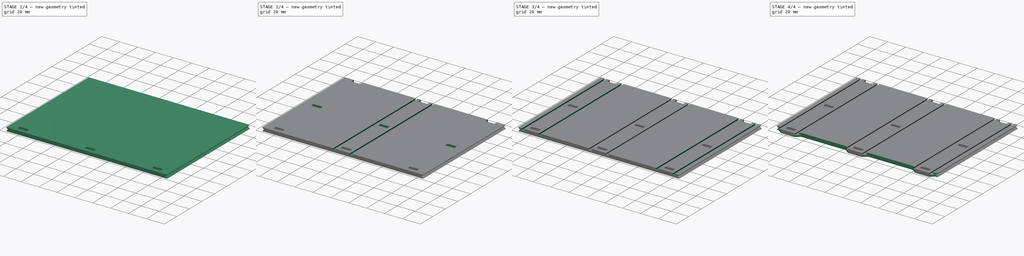
[diagram: build sequence overview — one tinted view per stage of 4, left to right]
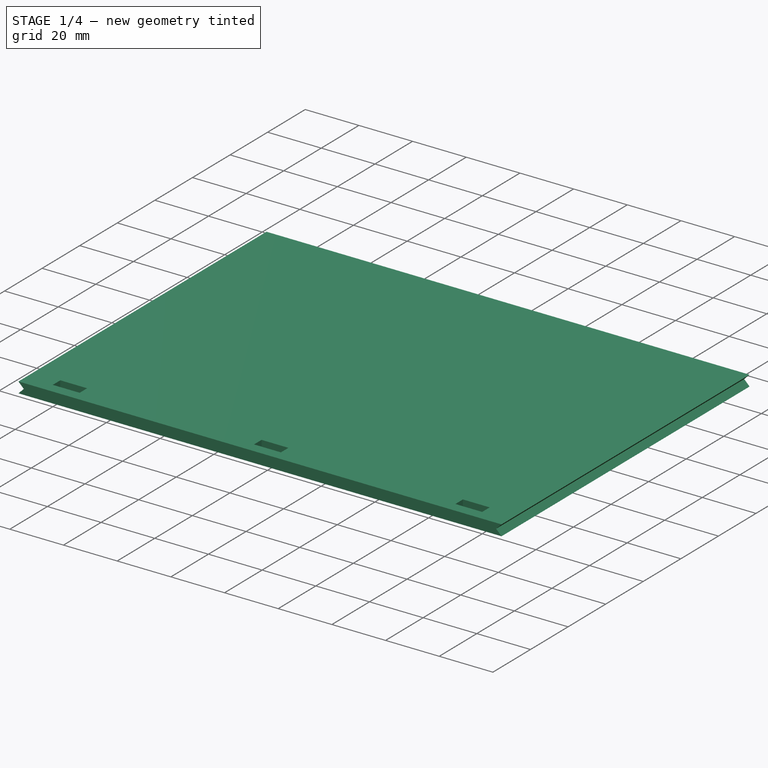
[diagram: stage 1 of 4 — iso view after this stage's code; geometry added in this stage tinted green]
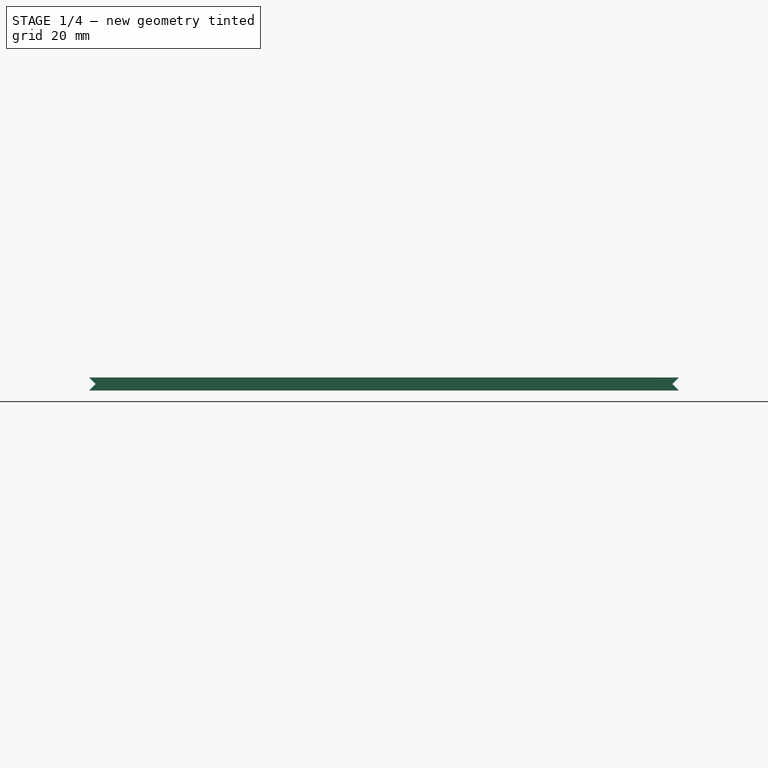
[diagram: stage 1 of 4 — front view after this stage's code; geometry added in this stage tinted green]
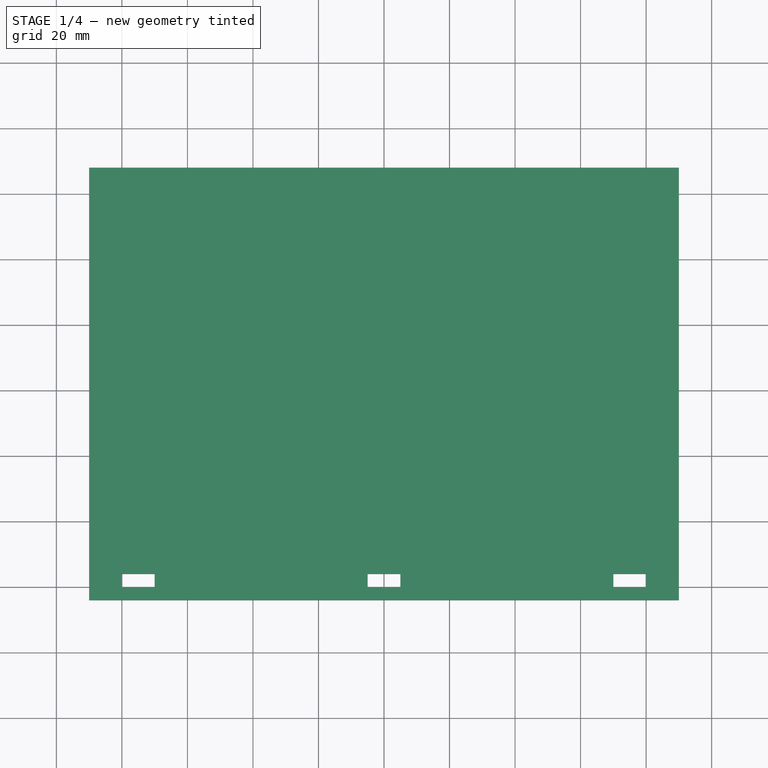
[diagram: stage 1 of 4 — top view after this stage's code; geometry added in this stage tinted green]
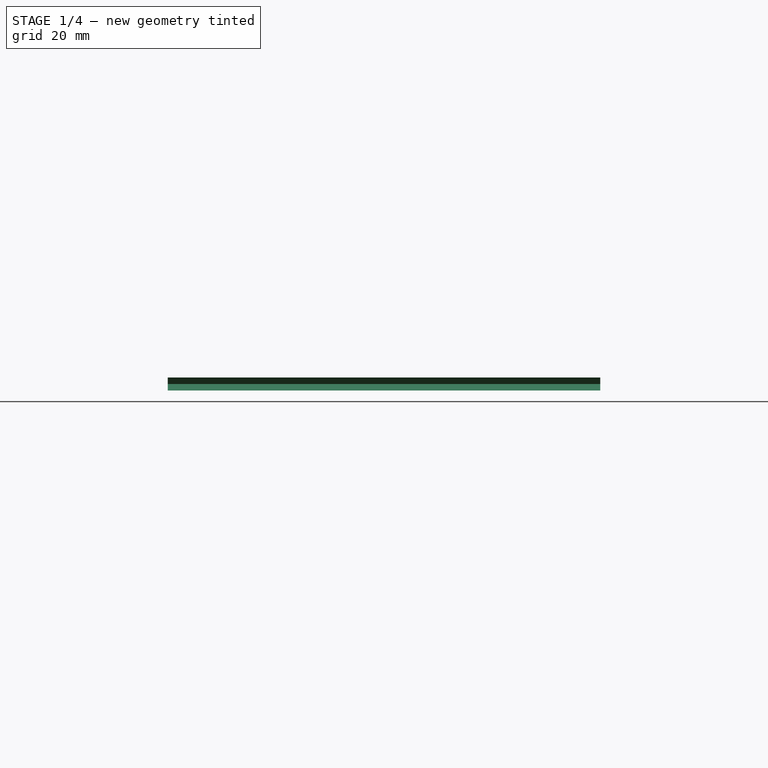
[diagram: stage 1 of 4 — right view after this stage's code; geometry added in this stage tinted green]
FCSTD DOCUMENT  (FreeCAD 0.18R16131 (Git))
Label: SolidWall
License: All rights reserved
LicenseURL: http://en.wikipedia.org/wiki/All_rights_reserved
objects: Sketcher::SketchObject×10, PartDesign::Pocket×7, PartDesign::Plane×6, PartDesign::AdditiveLoft×1, PartDesign::Fillet×1, PartDesign::Body×1, App::Part×1, Part::FeaturePython×1
note: 35 computed .brp shape members not serialized (recipe doc carries the construction recipe); baked Part::Feature solids carry a one-line shape summary decoded from their .brp

FEATURE [Sketcher::SketchObject] Sketch  label="HolesSketch1"
  MapMode = 5
  Support = -> [XY_Plane001]
  sketch-geometry (12):
    g0: LineSegment StartX=-80 StartY=4 StartZ=0 EndX=-70 EndY=4 EndZ=0
    g1: LineSegment StartX=-70 StartY=4 StartZ=0 EndX=-70 EndY=0 EndZ=0
    g2: LineSegment StartX=-70 StartY=0 StartZ=0 EndX=-80 EndY=1e-16 EndZ=0
    g3: LineSegment StartX=-80 StartY=1e-16 StartZ=0 EndX=-80 EndY=4 EndZ=0
    g4: LineSegment StartX=-5 StartY=4 StartZ=0 EndX=5 EndY=4 EndZ=0
    g5: LineSegment StartX=5 StartY=4 StartZ=0 EndX=5 EndY=0 EndZ=0
    g6: LineSegment StartX=5 StartY=0 StartZ=0 EndX=-5 EndY=0 EndZ=0
    g7: LineSegment StartX=-5 StartY=0 StartZ=0 EndX=-5 EndY=4 EndZ=0
    g8: LineSegment StartX=70 StartY=4 StartZ=0 EndX=80 EndY=4 EndZ=0
    g9: LineSegment StartX=80 StartY=4 StartZ=0 EndX=80 EndY=0 EndZ=0
    g10: LineSegment StartX=80 StartY=0 StartZ=0 EndX=70 EndY=0 EndZ=0
    g11: LineSegment StartX=70 StartY=0 StartZ=0 EndX=70 EndY=4 EndZ=0
  constraints (33):
    c: Coincident(g0,g1)
    c: Coincident(g1,g2)
    c: Coincident(g2,g3)
    c: Coincident(g3,g0)
    c: Horizontal(g0)
    c: Vertical(g1)
    c: Vertical(g3)
    c: PointOnObject(g1,g-1)
    c: Coincident(g4,g5)
    c: Coincident(g5,g6)
    c: Coincident(g6,g7)
    c: Coincident(g7,g4)
    c: Vertical(g5)
    c: Vertical(g7)
    c: PointOnObject(g5,g-1)
    c: Coincident(g8,g9)
    c: Coincident(g9,g10)
    c: Coincident(g10,g11)
    c: Coincident(g11,g8)
    c: Vertical(g9)
    c: Symmetric(g6,g5,g-2)
    c: Symmetric(g1,g10,g-2)
    c: Symmetric(g9,g2,g-2)
    c: Equal(g3,g1)
    c: Equal(g1,g7)
    c: Equal(g7,g5)
    c: Equal(g5,g11)
    c: Equal(g11,g9)
    c: Equal(g0,g4)
    c: Equal(g4,g8)
    c: Distance(g4) = 10
    c: Distance(g7) = 4
    c: Distance(g0,g8) = 160
FEATURE [PartDesign::Plane] DatumPlane  label="HolesPlane2"
  AttachmentOffset = pos=(0,60,0) rot=(0,0,1;0rad)
  Length = 211.521
  MapMode = 5
  Placement = pos=(0,60,0) rot=(0,0,1;0rad)
  ResizeMode = 0
  Support = -> [XY_Plane001]
  Width = 169.521
FEATURE [PartDesign::Plane] DatumPlane001  label="HolesPlane3"
  AttachmentOffset = pos=(0,124,0) rot=(0,0,1;0rad)
  Length = 211.521
  MapMode = 5
  Placement = pos=(0,124,0) rot=(0,0,1;0rad)
  ResizeMode = 0
  Support = -> [XY_Plane001]
  Width = 169.521
FEATURE [Sketcher::SketchObject] Sketch001  label="HolesSketch2"
  MapMode = 5
  Placement = pos=(0,60,0) rot=(0,0,1;0rad)
  Support = -> [DatumPlane]
  sketch-geometry (12):
    g0: LineSegment StartX=-80 StartY=4 StartZ=0 EndX=-70 EndY=4 EndZ=0
    g1: LineSegment StartX=-70 StartY=4 StartZ=0 EndX=-70 EndY=0 EndZ=0
    g2: LineSegment StartX=-70 StartY=0 StartZ=0 EndX=-80 EndY=1e-16 EndZ=0
    g3: LineSegment StartX=-80 StartY=1e-16 StartZ=0 EndX=-80 EndY=4 EndZ=0
    g4: LineSegment StartX=-5 StartY=4 StartZ=0 EndX=5 EndY=4 EndZ=0
    g5: LineSegment StartX=5 StartY=4 StartZ=0 EndX=5 EndY=0 EndZ=0
    g6: LineSegment StartX=5 StartY=0 StartZ=0 EndX=-5 EndY=0 EndZ=0
    g7: LineSegment StartX=-5 StartY=0 StartZ=0 EndX=-5 EndY=4 EndZ=0
    g8: LineSegment StartX=70 StartY=4 StartZ=0 EndX=80 EndY=4 EndZ=0
    g9: LineSegment StartX=80 StartY=4 StartZ=0 EndX=80 EndY=0 EndZ=0
    g10: LineSegment StartX=80 StartY=0 StartZ=0 EndX=70 EndY=0 EndZ=0
    g11: LineSegment StartX=70 StartY=0 StartZ=0 EndX=70 EndY=4 EndZ=0
  constraints (33):
    c: Coincident(g0,g1)
    c: Coincident(g1,g2)
    c: Coincident(g2,g3)
    c: Coincident(g3,g0)
    c: Horizontal(g0)
    c: Vertical(g1)
    c: Vertical(g3)
    c: PointOnObject(g1,g-1)
    c: Coincident(g4,g5)
    c: Coincident(g5,g6)
    c: Coincident(g6,g7)
    c: Coincident(g7,g4)
    c: Vertical(g5)
    c: Vertical(g7)
    c: PointOnObject(g5,g-1)
    c: Coincident(g8,g9)
    c: Coincident(g9,g10)
    c: Coincident(g10,g11)
    c: Coincident(g11,g8)
    c: Vertical(g9)
    c: Symmetric(g6,g5,g-2)
    c: Symmetric(g1,g10,g-2)
    c: Symmetric(g9,g2,g-2)
    c: Equal(g3,g1)
    c: Equal(g1,g7)
    c: Equal(g7,g5)
    c: Equal(g5,g11)
    c: Equal(g11,g9)
    c: Equal(g0,g4)
    c: Equal(g4,g8)
    c: Distance(g4) = 10
    c: Distance(g7) = 4
    c: Distance(g0,g8) = 160
FEATURE [Sketcher::SketchObject] Sketch002  label="HolesSketch3"
  MapMode = 5
  Placement = pos=(0,124,0) rot=(0,0,1;0rad)
  Support = -> [DatumPlane001]
  sketch-geometry (12):
    g0: LineSegment StartX=-80 StartY=4 StartZ=0 EndX=-70 EndY=4 EndZ=0
    g1: LineSegment StartX=-70 StartY=4 StartZ=0 EndX=-70 EndY=0 EndZ=0
    g2: LineSegment StartX=-70 StartY=0 StartZ=0 EndX=-80 EndY=1e-16 EndZ=0
    g3: LineSegment StartX=-80 StartY=1e-16 StartZ=0 EndX=-80 EndY=4 EndZ=0
    g4: LineSegment StartX=-5 StartY=4 StartZ=0 EndX=5 EndY=4 EndZ=0
    g5: LineSegment StartX=5 StartY=4 StartZ=0 EndX=5 EndY=0 EndZ=0
    g6: LineSegment StartX=5 StartY=0 StartZ=0 EndX=-5 EndY=0 EndZ=0
    g7: LineSegment StartX=-5 StartY=0 StartZ=0 EndX=-5 EndY=4 EndZ=0
    g8: LineSegment StartX=70 StartY=4 StartZ=0 EndX=80 EndY=4 EndZ=0
    g9: LineSegment StartX=80 StartY=4 StartZ=0 EndX=80 EndY=0 EndZ=0
    g10: LineSegment StartX=80 StartY=0 StartZ=0 EndX=70 EndY=0 EndZ=0
    g11: LineSegment StartX=70 StartY=0 StartZ=0 EndX=70 EndY=4 EndZ=0
  constraints (33):
    c: Coincident(g0,g1)
    c: Coincident(g1,g2)
    c: Coincident(g2,g3)
    c: Coincident(g3,g0)
    c: Horizontal(g0)
    c: Vertical(g1)
    c: Vertical(g3)
    c: PointOnObject(g1,g-1)
    c: Coincident(g4,g5)
    c: Coincident(g5,g6)
    c: Coincident(g6,g7)
    c: Coincident(g7,g4)
    c: Vertical(g5)
    c: Vertical(g7)
    c: PointOnObject(g5,g-1)
    c: Coincident(g8,g9)
    c: Coincident(g9,g10)
    c: Coincident(g10,g11)
    c: Coincident(g11,g8)
    c: Vertical(g9)
    c: Symmetric(g6,g5,g-2)
    c: Symmetric(g1,g10,g-2)
    c: Symmetric(g9,g2,g-2)
    c: Equal(g3,g1)
    c: Equal(g1,g7)
    c: Equal(g7,g5)
    c: Equal(g5,g11)
    c: Equal(g11,g9)
    c: Equal(g0,g4)
    c: Equal(g4,g8)
    c: Distance(g4) = 10
    c: Distance(g7) = 4
    c: Distance(g0,g8) = 160
FEATURE [Sketcher::SketchObject] Sketch003  label="WallSketchMid"
  MapMode = 5
  Support = -> [XY_Plane001]
  sketch-geometry (4):
    g0: LineSegment StartX=-88 StartY=128 StartZ=0 EndX=88 EndY=128 EndZ=0
    g1: LineSegment StartX=88 StartY=128 StartZ=0 EndX=88 EndY=-4 EndZ=0
    g2: LineSegment StartX=88 StartY=-4 StartZ=0 EndX=-88 EndY=-4 EndZ=0
    g3: LineSegment StartX=-88 StartY=-4 StartZ=0 EndX=-88 EndY=128 EndZ=0
  constraints (11):
    c: Coincident(g0,g1)
    c: Coincident(g1,g2)
    c: Coincident(g2,g3)
    c: Coincident(g3,g0)
    c: Horizontal(g2)
    c: Vertical(g1)
    c: Vertical(g3)
    c: Symmetric(g0,g0,g-2)
    c: Distance(g0) = 176
    c: DistanceY(g-1,g0) = 128
    c: DistanceY(g-1,g2) = -4
FEATURE [PartDesign::Plane] DatumPlane002  label="WallSketchPlaneTop"
  AttachmentOffset = pos=(0,0,2) rot=(0,0,1;0rad)
  Length = 211.521
  MapMode = 5
  Placement = pos=(0,0,2) rot=(0,0,1;0rad)
  ResizeMode = 0
  Support = -> [XY_Plane001]
  Width = 169.521
FEATURE [Sketcher::SketchObject] Sketch004  label="WallSketchTop"
  MapMode = 5
  Placement = pos=(0,0,2) rot=(0,0,1;0rad)
  Support = -> [DatumPlane002]
  sketch-geometry (4):
    g0: LineSegment StartX=-90 StartY=128 StartZ=0 EndX=90 EndY=128 EndZ=0
    g1: LineSegment StartX=90 StartY=128 StartZ=0 EndX=90 EndY=-4 EndZ=0
    g2: LineSegment StartX=90 StartY=-4 StartZ=0 EndX=-90 EndY=-4 EndZ=0
    g3: LineSegment StartX=-90 StartY=-4 StartZ=0 EndX=-90 EndY=128 EndZ=0
  constraints (11):
    c: Coincident(g0,g1)
    c: Coincident(g1,g2)
    c: Coincident(g2,g3)
    c: Coincident(g3,g0)
    c: Horizontal(g2)
    c: Vertical(g1)
    c: Vertical(g3)
    c: Symmetric(g0,g0,g-2)
    c: Distance(g0) = 180
    c: DistanceY(g-1,g0) = 128
    c: DistanceY(g-1,g2) = -4
FEATURE [PartDesign::Plane] DatumPlane003  label="WallSketchPlaneBottom"
  AttachmentOffset = pos=(0,0,-2) rot=(0,0,1;0rad)
  Length = 211.521
  MapMode = 5
  Placement = pos=(0,0,-2) rot=(0,0,1;0rad)
  ResizeMode = 0
  Support = -> [XY_Plane001]
  Width = 169.521
FEATURE [Sketcher::SketchObject] Sketch005  label="WallSketchBottom"
  MapMode = 5
  Placement = pos=(0,0,-2) rot=(0,0,1;0rad)
  Support = -> [DatumPlane003]
  sketch-geometry (4):
    g0: LineSegment StartX=-90 StartY=128 StartZ=0 EndX=90 EndY=128 EndZ=0
    g1: LineSegment StartX=90 StartY=128 StartZ=0 EndX=90 EndY=-4 EndZ=0
    g2: LineSegment StartX=90 StartY=-4 StartZ=0 EndX=-90 EndY=-4 EndZ=0
    g3: LineSegment StartX=-90 StartY=-4 StartZ=0 EndX=-90 EndY=128 EndZ=0
  constraints (11):
    c: Coincident(g0,g1)
    c: Coincident(g1,g2)
    c: Coincident(g2,g3)
    c: Coincident(g3,g0)
    c: Horizontal(g2)
    c: Vertical(g1)
    c: Vertical(g3)
    c: Symmetric(g0,g0,g-2)
    c: Distance(g0) = 180
    c: DistanceY(g-1,g0) = 128
    c: DistanceY(g-1,g2) = -4
FEATURE [PartDesign::AdditiveLoft] AdditiveLoft
  Closed = false
  Placement = pos=(0,0,-2) rot=(0,0,1;0rad)
  Profile = -> Sketch005
  Ruled = true
  Sections = -> [Sketch003,Sketch004]
FEATURE [PartDesign::Pocket] Pocket
  BaseFeature = -> AdditiveLoft
  Length = 5
  Length2 = 100
  Midplane = true
  Placement = pos=(0,0,-2) rot=(0,0,1;0rad)
  Profile = -> Sketch
  Type = 1
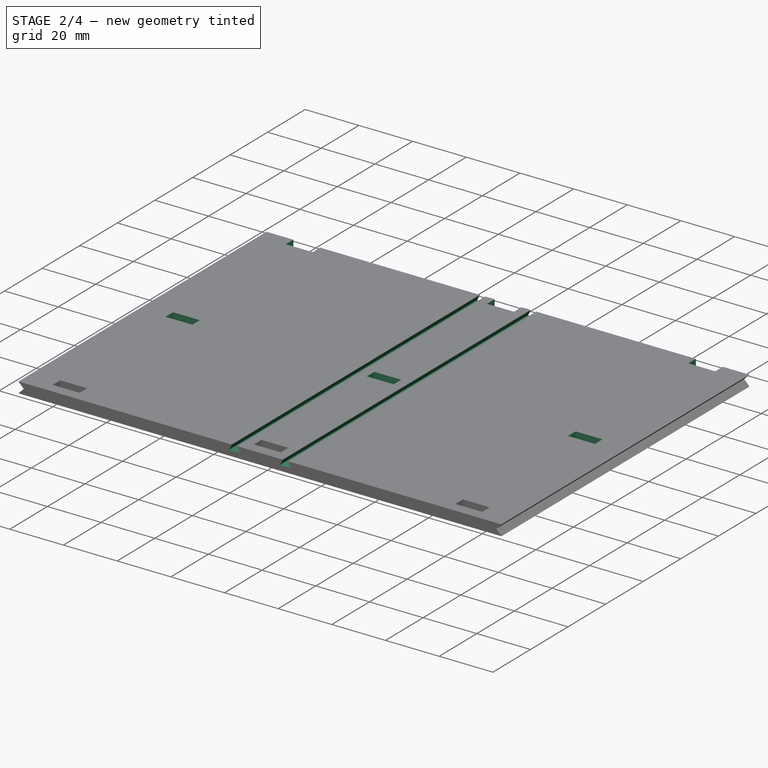
[diagram: stage 2 of 4 — iso view after this stage's code; geometry added in this stage tinted green]
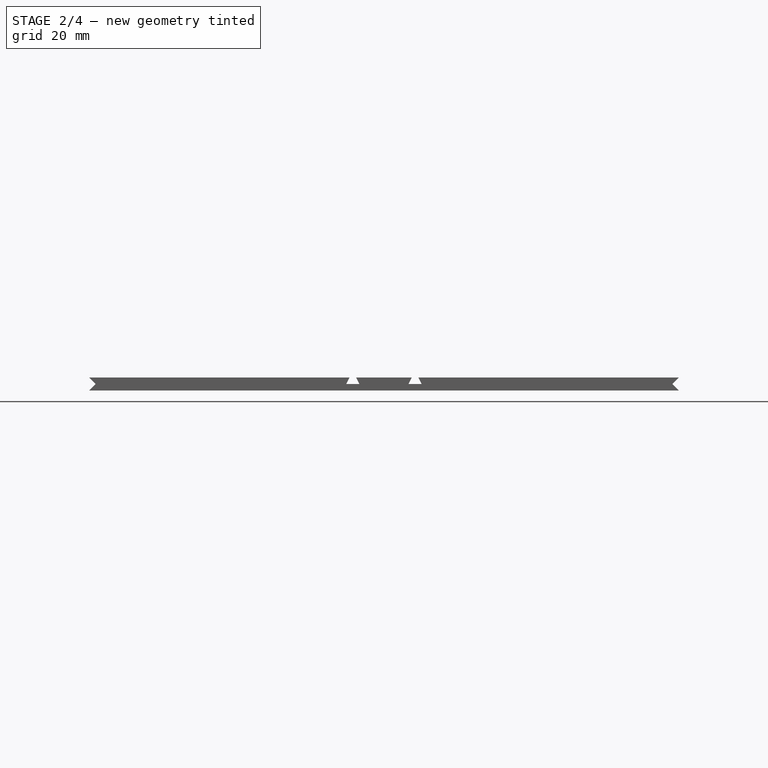
[diagram: stage 2 of 4 — front view after this stage's code; geometry added in this stage tinted green]
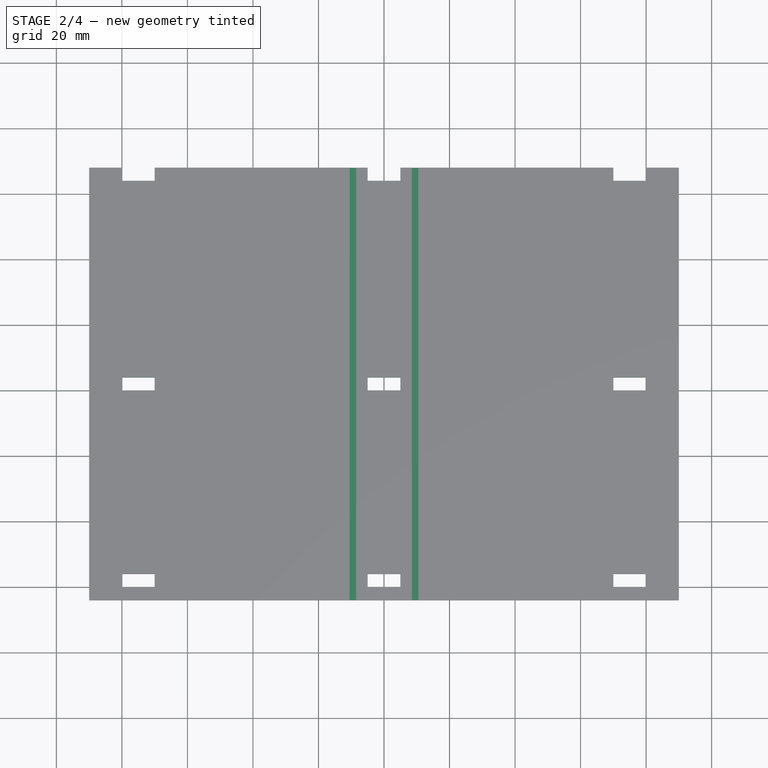
[diagram: stage 2 of 4 — top view after this stage's code; geometry added in this stage tinted green]
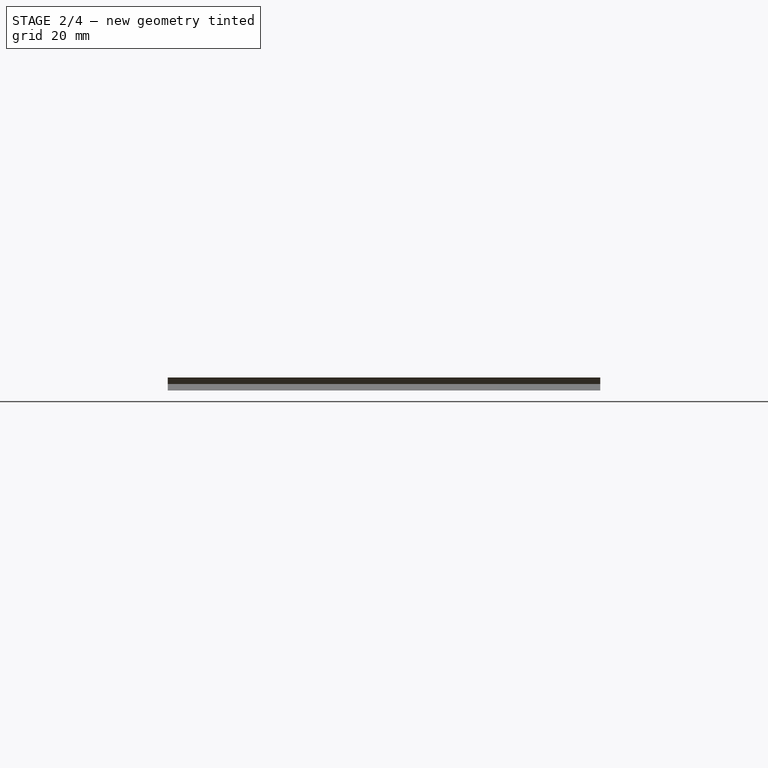
[diagram: stage 2 of 4 — right view after this stage's code; geometry added in this stage tinted green]
FEATURE [PartDesign::Pocket] Pocket001
  BaseFeature = -> Pocket
  Length = 5
  Length2 = 100
  Midplane = true
  Placement = pos=(0,0,-2) rot=(0,0,1;0rad)
  Profile = -> Sketch001
  Type = 1
FEATURE [PartDesign::Pocket] Pocket002
  BaseFeature = -> Pocket001
  Length = 5
  Length2 = 100
  Midplane = true
  Placement = pos=(0,0,-2) rot=(0,0,1;0rad)
  Profile = -> Sketch002
  Type = 1
FEATURE [Sketcher::SketchObject] Sketch006  label="RailsSketch1"
  MapMode = 5
  Placement = pos=(0,0,0) rot=(1,0,0;1.5708rad)
  Support = -> [XZ_Plane001]
  sketch-geometry (8):
    g0: LineSegment StartX=-11.5 StartY=0 StartZ=0 EndX=-7.5 EndY=0 EndZ=0
    g1: LineSegment StartX=-11.5 StartY=0 StartZ=0 EndX=-10.5 EndY=2 EndZ=0
    g2: LineSegment StartX=-10.5 StartY=2 StartZ=0 EndX=-8.5 EndY=2 EndZ=0
    g3: LineSegment StartX=-8.5 StartY=2 StartZ=0 EndX=-7.5 EndY=0 EndZ=0
    g4: LineSegment StartX=7.5 StartY=0 StartZ=0 EndX=11.5 EndY=-1.62e-14 EndZ=0
    g5: LineSegment StartX=11.5 StartY=-1.62e-14 StartZ=0 EndX=10.5 EndY=2 EndZ=0
    g6: LineSegment StartX=10.5 StartY=2 StartZ=0 EndX=8.5 EndY=2 EndZ=0
    g7: LineSegment StartX=8.5 StartY=2 StartZ=0 EndX=7.5 EndY=0 EndZ=0
  constraints (22):
    c: Coincident(g1,g0)
    c: Coincident(g2,g1)
    c: Coincident(g3,g2)
    c: Coincident(g3,g0)
    c: Coincident(g5,g4)
    c: Coincident(g6,g5)
    c: Coincident(g7,g6)
    c: Coincident(g7,g4)
    c: Symmetric(g0,g4,g-2)
    c: Symmetric(g0,g4,g-2)
    c: Symmetric(g1,g5,g-2)
    c: Symmetric(g2,g6,g-2)
    c: PointOnObject(g0,g-1)
    c: PointOnObject(g0,g-1)
    c: Equal(g1,g3)
    c: Equal(g3,g7)
    c: Equal(g7,g5)
    c: Horizontal(g2)
    c: Distance(g0) = 4
    c: Distance(g0,g4) = 15
    c: DistanceY(g0,g1) = 2
    c: Distance(g2) = 2
FEATURE [PartDesign::Plane] DatumPlane004  label="RailsPlane2"
  AttachmentOffset = pos=(-75,0,0) rot=(0,0,1;0rad)
  Length = 192
  MapMode = 5
  Placement = pos=(-75,0,0) rot=(1,0,0;1.5708rad)
  ResizeMode = 0
  Support = -> [XZ_Plane001]
  Width = 32
FEATURE [Sketcher::SketchObject] Sketch007  label="RailsSketch2"
  MapMode = 5
  Placement = pos=(-75,0,0) rot=(1,0,0;1.5708rad)
  Support = -> [DatumPlane004]
  sketch-geometry (8):
    g0: LineSegment StartX=-11.5 StartY=0 StartZ=0 EndX=-7.5 EndY=0 EndZ=0
    g1: LineSegment StartX=-11.5 StartY=0 StartZ=0 EndX=-10.5 EndY=2 EndZ=0
    g2: LineSegment StartX=-10.5 StartY=2 StartZ=0 EndX=-8.5 EndY=2 EndZ=0
    g3: LineSegment StartX=-8.5 StartY=2 StartZ=0 EndX=-7.5 EndY=0 EndZ=0
    g4: LineSegment StartX=7.5 StartY=0 StartZ=0 EndX=11.5 EndY=-1.62e-14 EndZ=0
    g5: LineSegment StartX=11.5 StartY=-1.62e-14 StartZ=0 EndX=10.5 EndY=2 EndZ=0
    g6: LineSegment StartX=10.5 StartY=2 StartZ=0 EndX=8.5 EndY=2 EndZ=0
    g7: LineSegment StartX=8.5 StartY=2 StartZ=0 EndX=7.5 EndY=0 EndZ=0
  constraints (22):
    c: Coincident(g1,g0)
    c: Coincident(g2,g1)
    c: Coincident(g3,g2)
    c: Coincident(g3,g0)
    c: Coincident(g5,g4)
    c: Coincident(g6,g5)
    c: Coincident(g7,g6)
    c: Coincident(g7,g4)
    c: Symmetric(g0,g4,g-2)
    c: Symmetric(g0,g4,g-2)
    c: Symmetric(g1,g5,g-2)
    c: Symmetric(g2,g6,g-2)
    c: PointOnObject(g0,g-1)
    c: PointOnObject(g0,g-1)
    c: Equal(g1,g3)
    c: Equal(g3,g7)
    c: Equal(g7,g5)
    c: Horizontal(g2)
    c: Distance(g0) = 4
    c: Distance(g0,g4) = 15
    c: DistanceY(g0,g1) = 2
    c: Distance(g2) = 2
FEATURE [PartDesign::Plane] DatumPlane005  label="RailsPlane3"
  AttachmentOffset = pos=(75,0,0) rot=(0,0,1;0rad)
  Length = 192
  MapMode = 5
  Placement = pos=(75,0,0) rot=(1,0,0;1.5708rad)
  ResizeMode = 0
  Support = -> [XZ_Plane001]
  Width = 32
FEATURE [Sketcher::SketchObject] Sketch008  label="RailsSketch3"
  MapMode = 5
  Placement = pos=(75,0,0) rot=(1,0,0;1.5708rad)
  Support = -> [DatumPlane005]
  sketch-geometry (8):
    g0: LineSegment StartX=-11.5 StartY=0 StartZ=0 EndX=-7.5 EndY=0 EndZ=0
    g1: LineSegment StartX=-11.5 StartY=0 StartZ=0 EndX=-10.5 EndY=2 EndZ=0
    g2: LineSegment StartX=-10.5 StartY=2 StartZ=0 EndX=-8.5 EndY=2 EndZ=0
    g3: LineSegment StartX=-8.5 StartY=2 StartZ=0 EndX=-7.5 EndY=0 EndZ=0
    g4: LineSegment StartX=7.5 StartY=0 StartZ=0 EndX=11.5 EndY=-1.62e-14 EndZ=0
    g5: LineSegment StartX=11.5 StartY=-1.62e-14 StartZ=0 EndX=10.5 EndY=2 EndZ=0
    g6: LineSegment StartX=10.5 StartY=2 StartZ=0 EndX=8.5 EndY=2 EndZ=0
    g7: LineSegment StartX=8.5 StartY=2 StartZ=0 EndX=7.5 EndY=0 EndZ=0
  constraints (22):
    c: Coincident(g1,g0)
    c: Coincident(g2,g1)
    c: Coincident(g3,g2)
    c: Coincident(g3,g0)
    c: Coincident(g5,g4)
    c: Coincident(g6,g5)
    c: Coincident(g7,g6)
    c: Coincident(g7,g4)
    c: Symmetric(g0,g4,g-2)
    c: Symmetric(g0,g4,g-2)
    c: Symmetric(g1,g5,g-2)
    c: Symmetric(g2,g6,g-2)
    c: PointOnObject(g0,g-1)
    c: PointOnObject(g0,g-1)
    c: Equal(g1,g3)
    c: Equal(g3,g7)
    c: Equal(g7,g5)
    c: Horizontal(g2)
    c: Distance(g0) = 4
    c: Distance(g0,g4) = 15
    c: DistanceY(g0,g1) = 2
    c: Distance(g2) = 2
FEATURE [PartDesign::Pocket] Pocket003
  BaseFeature = -> Pocket002
  Length = 5
  Length2 = 100
  Midplane = true
  Placement = pos=(0,0,-2) rot=(0,0,1;0rad)
  Profile = -> Sketch006
  Type = 1
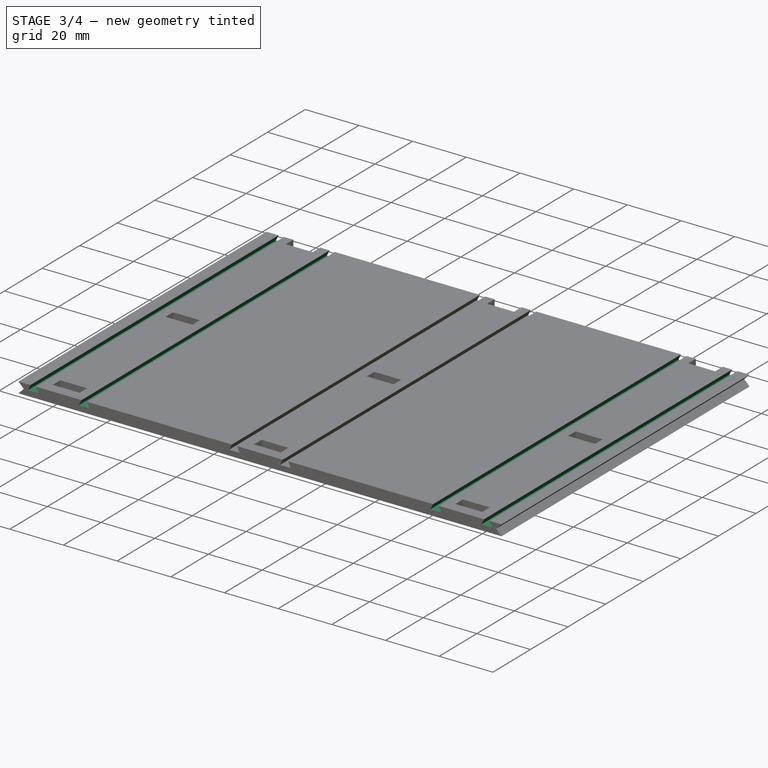
[diagram: stage 3 of 4 — iso view after this stage's code; geometry added in this stage tinted green]
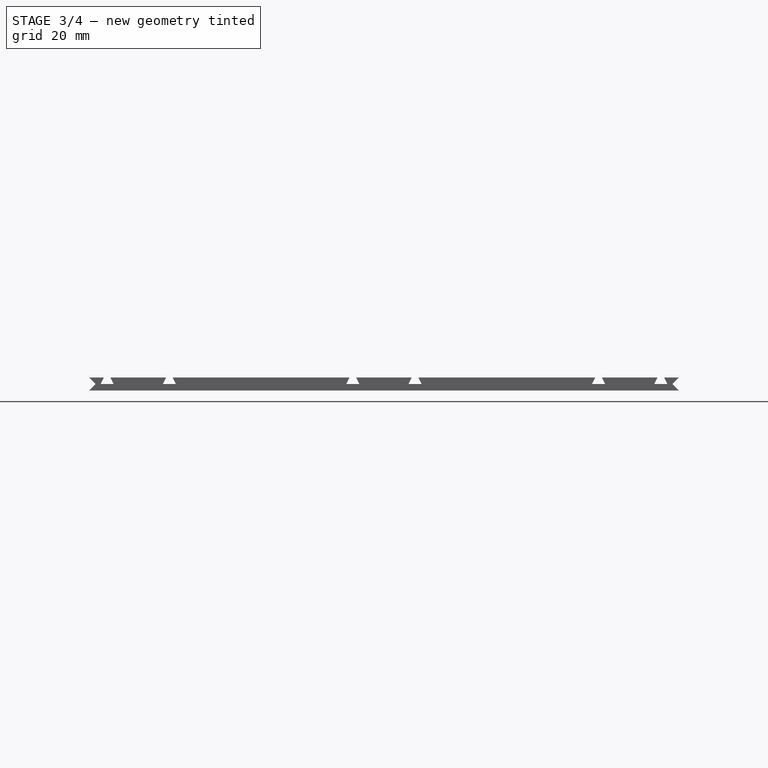
[diagram: stage 3 of 4 — front view after this stage's code; geometry added in this stage tinted green]
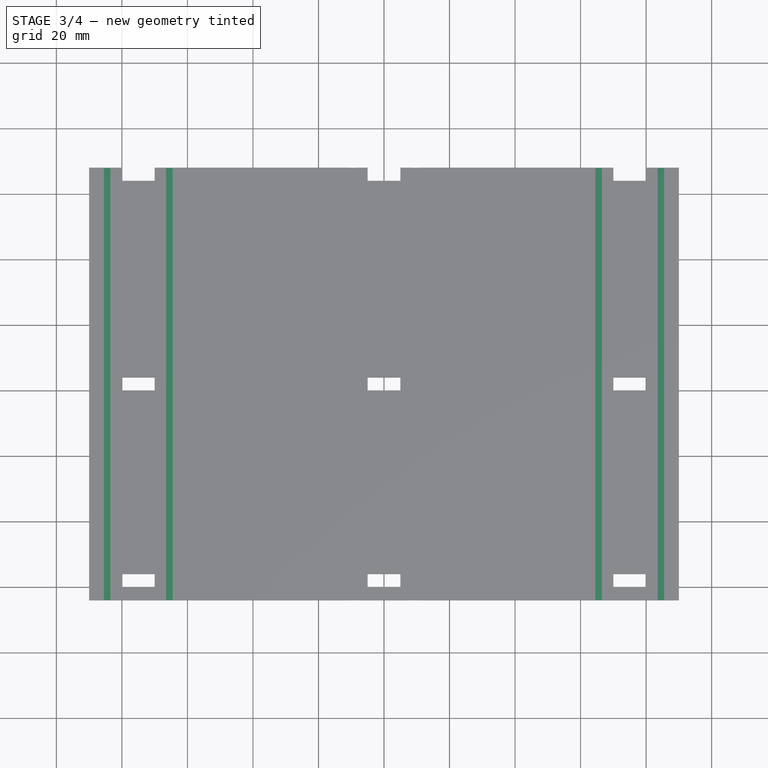
[diagram: stage 3 of 4 — top view after this stage's code; geometry added in this stage tinted green]
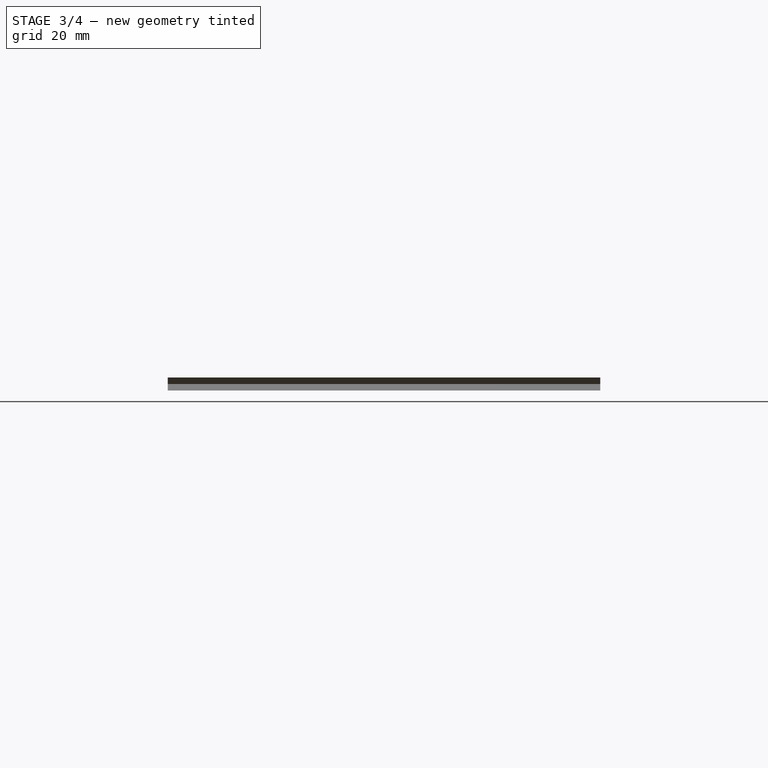
[diagram: stage 3 of 4 — right view after this stage's code; geometry added in this stage tinted green]
FEATURE [PartDesign::Pocket] Pocket004
  BaseFeature = -> Pocket003
  Length = 5
  Length2 = 100
  Midplane = true
  Placement = pos=(0,0,-2) rot=(0,0,1;0rad)
  Profile = -> Sketch007
  Type = 1
FEATURE [PartDesign::Pocket] Pocket005
  BaseFeature = -> Pocket004
  Length = 5
  Length2 = 100
  Midplane = true
  Placement = pos=(0,0,-2) rot=(0,0,1;0rad)
  Profile = -> Sketch008
  Type = 1
FEATURE [PartDesign::Fillet] Fillet
  Base = -> Pocket005 [Edge21,Edge24,Edge28,Edge25,Edge36,Edge33,Edge20,Edge17,Edge32,Edge29,Edge40,Edge37,Edge15,Edge13,Edge11,Edge9,Edge7,Edge5]
  BaseFeature = -> Pocket005
  Placement = pos=(0,0,-2) rot=(0,0,1;0rad)
  Radius = 1
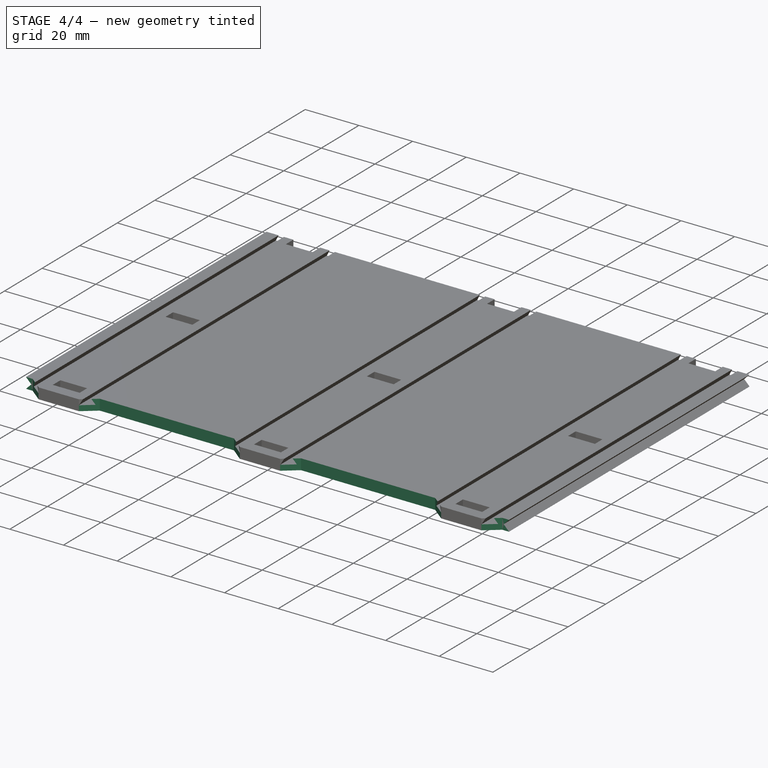
[diagram: stage 4 of 4 — iso view after this stage's code; geometry added in this stage tinted green]
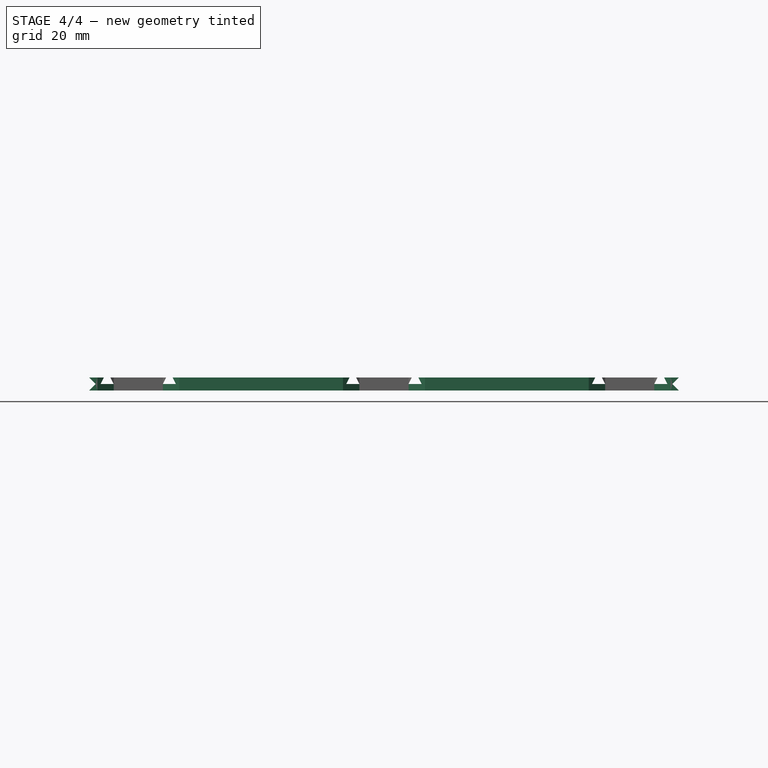
[diagram: stage 4 of 4 — front view after this stage's code; geometry added in this stage tinted green]
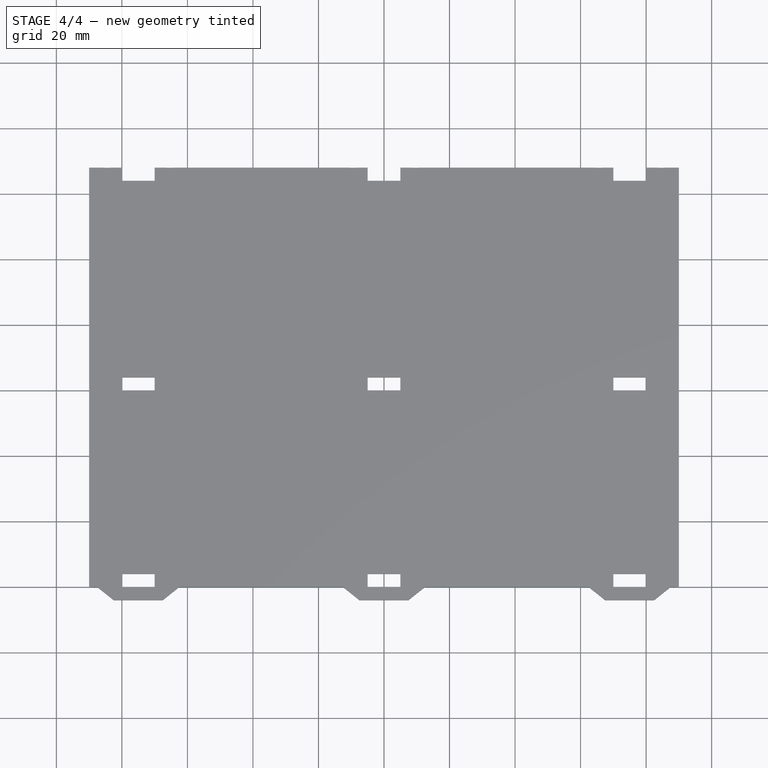
[diagram: stage 4 of 4 — top view after this stage's code; geometry added in this stage tinted green]
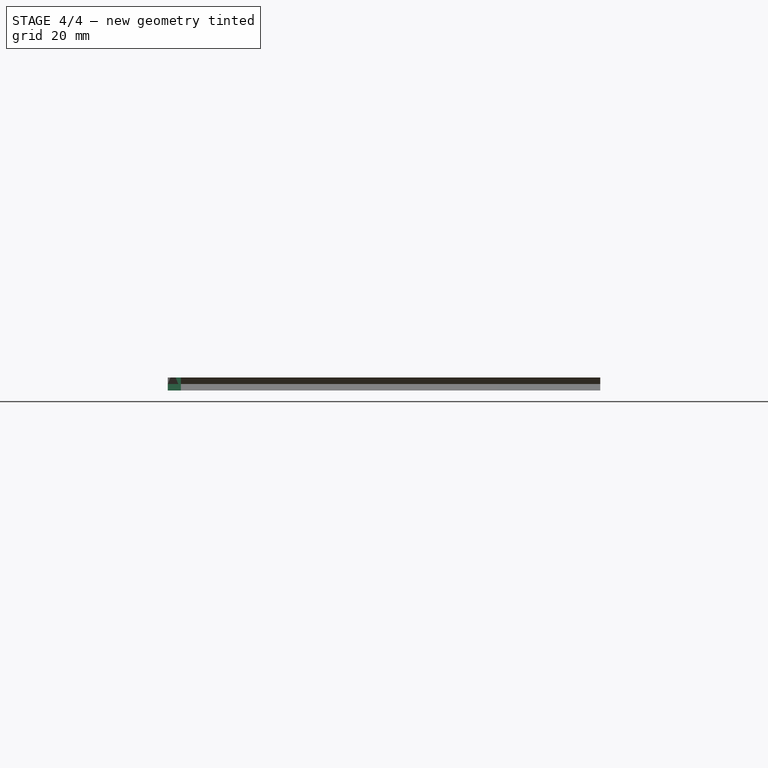
[diagram: stage 4 of 4 — right view after this stage's code; geometry added in this stage tinted green]
FEATURE [Sketcher::SketchObject] Sketch009
  MapMode = 5
  Support = -> [XY_Plane001]
  sketch-geometry (19):
    g0: LineSegment StartX=-100 StartY=0 StartZ=0 EndX=-100 EndY=-20 EndZ=0
    g1: LineSegment StartX=-100 StartY=-20 StartZ=0 EndX=100 EndY=-20 EndZ=0
    g2: LineSegment StartX=100 StartY=-20 StartZ=0 EndX=100 EndY=0 EndZ=0
    g3: LineSegment StartX=-12.5 StartY=0 StartZ=0 EndX=-62.5 EndY=0 EndZ=0
    g4: LineSegment StartX=-62.5 StartY=0 StartZ=0 EndX=-67.5 EndY=-4 EndZ=0
    g5: LineSegment StartX=-67.5 StartY=-4 StartZ=0 EndX=-82.5 EndY=-4 EndZ=0
    g6: LineSegment StartX=-82.5 StartY=-4 StartZ=0 EndX=-87.5 EndY=0 EndZ=0
    g7: LineSegment StartX=-87.5 StartY=0 StartZ=0 EndX=-100 EndY=0 EndZ=0
    g8: LineSegment StartX=-12.5 StartY=0 StartZ=0 EndX=-7.5 EndY=-4 EndZ=0
    g9: LineSegment StartX=-7.5 StartY=-4 StartZ=0 EndX=7.5 EndY=-4 EndZ=0
    g10: LineSegment StartX=7.5 StartY=-4 StartZ=0 EndX=12.5 EndY=0 EndZ=0
    g11: LineSegment StartX=12.5 StartY=0 StartZ=0 EndX=62.5 EndY=0 EndZ=0
    g12: LineSegment StartX=62.5 StartY=0 StartZ=0 EndX=67.5 EndY=-4 EndZ=0
    g13: LineSegment StartX=67.5 StartY=-4 StartZ=0 EndX=82.5 EndY=-4 EndZ=0
    g14: LineSegment StartX=82.5 StartY=-4 StartZ=0 EndX=87.5 EndY=0 EndZ=0
    g15: LineSegment StartX=87.5 StartY=0 StartZ=0 EndX=100 EndY=0 EndZ=0
    g16: LineSegment [constr] StartX=-87.5 StartY=0 StartZ=0 EndX=-62.5 EndY=0 EndZ=0
    g17: LineSegment [constr] StartX=-12.5 StartY=0 StartZ=0 EndX=12.5 EndY=0 EndZ=0
    g18: LineSegment [constr] StartX=62.5 StartY=0 StartZ=0 EndX=87.5 EndY=0 EndZ=0
  constraints (51):
    c: PointOnObject(g0,g-1)
    c: Vertical(g0)
    c: Coincident(g1,g0)
    c: Coincident(g2,g1)
    c: PointOnObject(g2,g-1)
    c: Vertical(g2)
    c: PointOnObject(g3,g-1)
    c: PointOnObject(g3,g-1)
    c: Coincident(g4,g3)
    c: Coincident(g5,g4)
    c: Horizontal(g5)
    c: Coincident(g6,g5)
    c: PointOnObject(g6,g-1)
    c: Coincident(g7,g6)
    c: Coincident(g7,g0)
    c: Coincident(g8,g3)
    c: Coincident(g9,g8)
    c: Horizontal(g9)
    c: Coincident(g10,g9)
    c: Coincident(g11,g10)
    c: Coincident(g12,g11)
    c: Coincident(g13,g12)
    c: Coincident(g14,g13)
    c: PointOnObject(g14,g-1)
    c: Coincident(g15,g14)
    c: Coincident(g15,g2)
    c: Symmetric(g3,g10,g-2)
    c: Equal(g13,g9)
    c: Equal(g9,g5)
    c: Equal(g6,g4)
    c: Equal(g4,g8)
    c: Equal(g8,g10)
    c: Equal(g10,g12)
    c: Equal(g12,g14)
    c: Horizontal(g13)
    c: Coincident(g16,g6)
    c: Coincident(g16,g3)
    c: Coincident(g17,g3)
    c: Coincident(g17,g10)
    c: Coincident(g18,g11)
    c: Coincident(g18,g14)
    c: Equal(g16,g17)
    c: Equal(g17,g18)
    c: Distance(g4,g3) = 4
    c: Distance(g9) = 15
    c: Distance(g17) = 25
    c: Distance(g4,g12) = 135
    c: Symmetric(g11,g3,g-2)
    c: Symmetric(g0,g1,g-2)
    c: Distance(g1) = 200
    c: Distance(g0) = 20
FEATURE [PartDesign::Pocket] Pocket006
  BaseFeature = -> Fillet
  Length = 5
  Length2 = 100
  Midplane = true
  Placement = pos=(0,0,-2) rot=(0,0,1;0rad)
  Profile = -> Sketch009
  Type = 1
FEATURE [PartDesign::Body] Body  label="WallBody"
  Group = -> [Sketch,DatumPlane,DatumPlane001,Sketch001,Sketch002,Sketch003,Sketch004,Sketch005,DatumPlane002,DatumPlane003,AdditiveLoft,Pocket,Pocket001,Pocket002,Sketch006,DatumPlane004,Sketch007,Sketch008,DatumPlane005,Pocket003,Pocket004,Pocket005,Fillet,Sketch009,Pocket006]
  Origin = -> Origin001
  Tip = -> Pocket006
FEATURE [App::Part] Part  label="WallPart"
  Group = -> [Body]
  Origin = -> Origin
FEATURE [Part::FeaturePython] refine  label="WallBody_Refined"  # WARN: FeaturePython — macro-defined, semantics opaque (R4)
  Base = -> Body
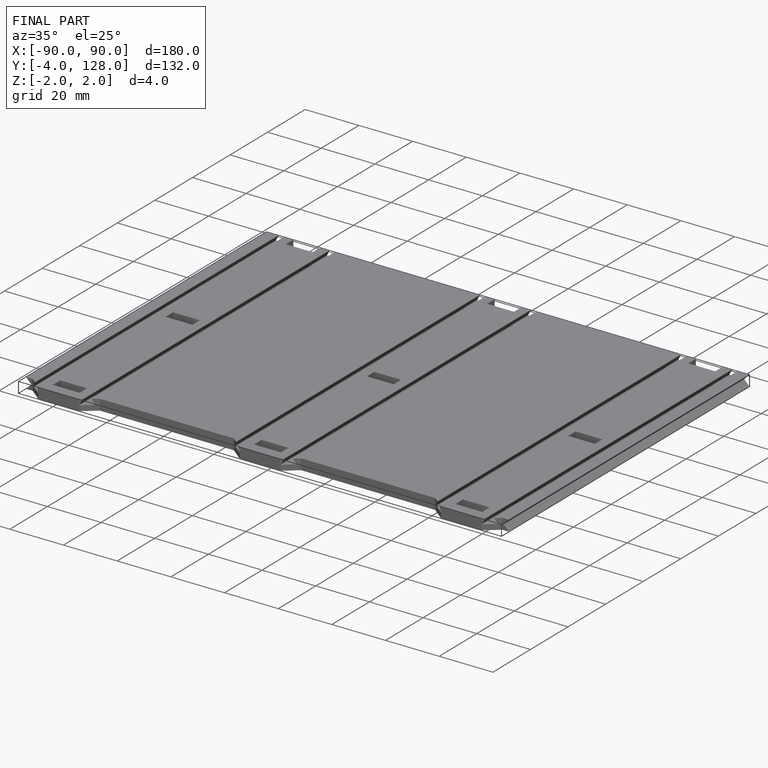
[diagram: finished part — iso view with bounding-box wireframe]
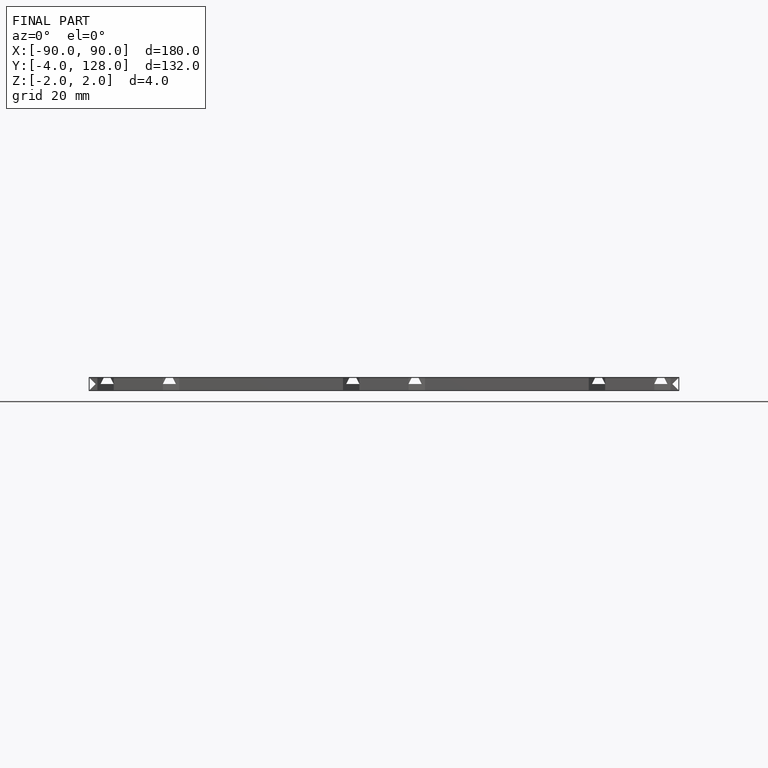
[diagram: finished part — front view with bounding-box wireframe]
